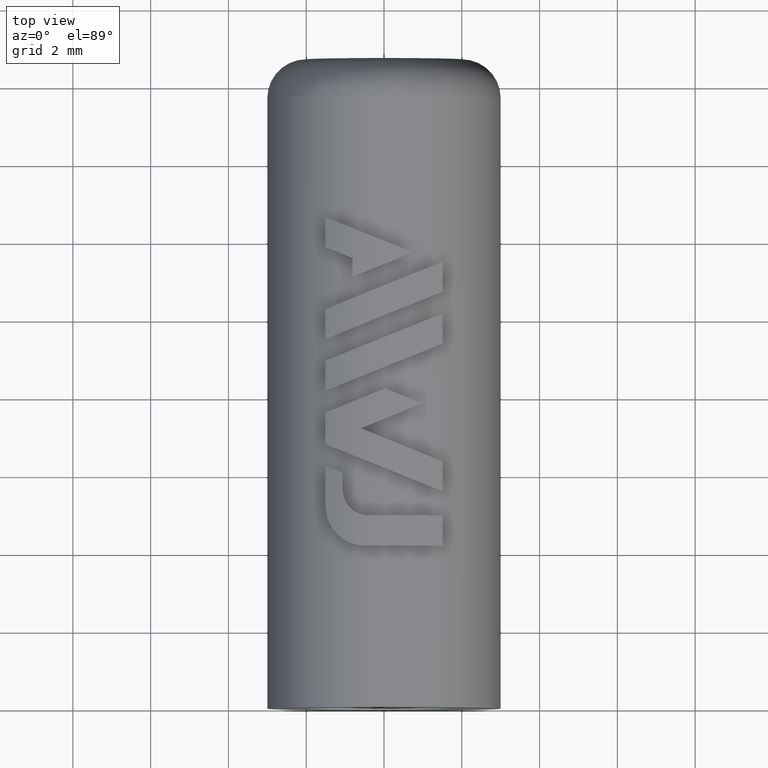
[diagram: clean part render]
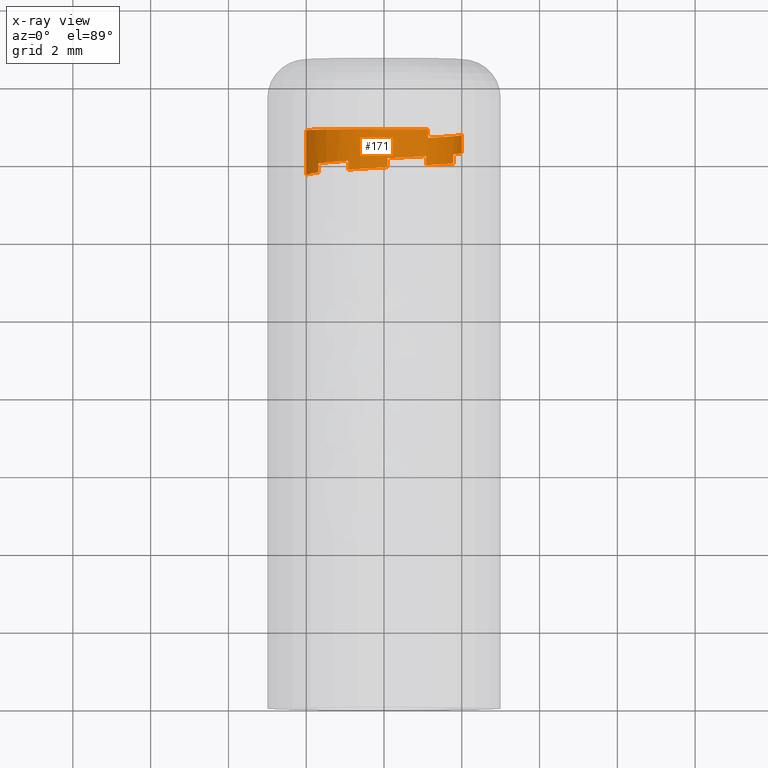
[diagram: x-ray — body ghosted, one internal face saturated and labeled with its STEP entity id]
A machine part, top view, then the same camera in x-ray: the body is ghosted and one INTERNAL B-rep face — a face not visible from any outside direction — is saturated and labeled: STEP entity #171.
In plain terms, the highlighted cylindrical surface (partial cylindrical patch) has radius 2 mm, axis along (-0, 1, 0).
Its self-contained STEP definition (entity closure, byte-faithful):
#171=ADVANCED_FACE('',(#618,#619,#620,#621,#622,#623,#624),#625,.F.);
#618=FACE_OUTER_BOUND('',#1424,.T.);
#619=FACE_BOUND('',#1425,.T.);
#620=FACE_BOUND('',#1426,.T.);
#621=FACE_BOUND('',#1427,.T.);
#622=FACE_BOUND('',#1428,.T.);
#623=FACE_BOUND('',#1429,.T.);
#624=FACE_BOUND('',#1430,.T.);
#625=CYLINDRICAL_SURFACE('',#1431,2.0);
#1424=EDGE_LOOP('',(#5887,#5888,#5889,#5890,#5891,#5892,#5893,#5894,#5895,#5896,#5897,#5898,#5899,#5900,#5901,#5902,#5903,#5904,#5905,#5906,#5907,#5908,#5909));
#1425=VERTEX_LOOP('',#5910);
#1426=VERTEX_LOOP('',#5911);
#1427=VERTEX_LOOP('',#5912);
#1428=VERTEX_LOOP('',#5913);
#1429=VERTEX_LOOP('',#5914);
#1430=VERTEX_LOOP('',#5915);
#1431=AXIS2_PLACEMENT_3D('',#5916,#5917,#5918);
#5887=ORIENTED_EDGE('',*,*,#9274,.T.);
#5888=ORIENTED_EDGE('',*,*,#9275,.T.);
#5889=ORIENTED_EDGE('',*,*,#9276,.T.);
#5890=ORIENTED_EDGE('',*,*,#9277,.F.);
#5891=ORIENTED_EDGE('',*,*,#9278,.F.);
#5892=ORIENTED_EDGE('',*,*,#9279,.T.);
#5893=ORIENTED_EDGE('',*,*,#9280,.T.);
#5894=ORIENTED_EDGE('',*,*,#9281,.F.);
#5895=ORIENTED_EDGE('',*,*,#9282,.F.);
#5896=ORIENTED_EDGE('',*,*,#9283,.T.);
#5897=ORIENTED_EDGE('',*,*,#9284,.T.);
#5898=ORIENTED_EDGE('',*,*,#9285,.F.);
#5899=ORIENTED_EDGE('',*,*,#9286,.F.);
#5900=ORIENTED_EDGE('',*,*,#9287,.T.);
#5901=ORIENTED_EDGE('',*,*,#9288,.T.);
#5902=ORIENTED_EDGE('',*,*,#9289,.T.);
#5903=ORIENTED_EDGE('',*,*,#9290,.F.);
#5904=ORIENTED_EDGE('',*,*,#9291,.T.);
#5905=ORIENTED_EDGE('',*,*,#9292,.T.);
#5906=ORIENTED_EDGE('',*,*,#9264,.F.);
#5907=ORIENTED_EDGE('',*,*,#9293,.T.);
#5908=ORIENTED_EDGE('',*,*,#9294,.T.);
#5909=ORIENTED_EDGE('',*,*,#9295,.T.);
#5910=VERTEX_POINT('',#9296);
#5911=VERTEX_POINT('',#9297);
#5912=VERTEX_POINT('',#9298);
#5913=VERTEX_POINT('',#9299);
#5914=VERTEX_POINT('',#9300);
#5915=VERTEX_POINT('',#9301);
#5916=CARTESIAN_POINT('',(0.0,0.0,0.0));
#5917=DIRECTION('',(-0.0,1.0,0.0));
#5918=DIRECTION('',(1.0,0.0,-6.12323399573677E-17));
#9264=EDGE_CURVE('',#10966,#10968,#10969,.T.);
#9274=EDGE_CURVE('',#10984,#10985,#10986,.T.);
#9275=EDGE_CURVE('',#10985,#10987,#10988,.T.);
#9276=EDGE_CURVE('',#10987,#10989,#10990,.T.);
#9277=EDGE_CURVE('',#10991,#10989,#10992,.T.);
#9278=EDGE_CURVE('',#10993,#10991,#10994,.T.);
#9279=EDGE_CURVE('',#10993,#10995,#10996,.T.);
#9280=EDGE_CURVE('',#10995,#10997,#10998,.T.);
#9281=EDGE_CURVE('',#10999,#10997,#11000,.T.);
#9282=EDGE_CURVE('',#11001,#10999,#11002,.T.);
#9283=EDGE_CURVE('',#11001,#11003,#11004,.T.);
#9284=EDGE_CURVE('',#11003,#11005,#11006,.T.);
#9285=EDGE_CURVE('',#11007,#11005,#11008,.T.);
#9286=EDGE_CURVE('',#11009,#11007,#11010,.T.);
#9287=EDGE_CURVE('',#11009,#11011,#11012,.T.);
#9288=EDGE_CURVE('',#11011,#11013,#11014,.T.);
#9289=EDGE_CURVE('',#11013,#11015,#11016,.T.);
#9290=EDGE_CURVE('',#11017,#11015,#11018,.T.);
#9291=EDGE_CURVE('',#11017,#11019,#11020,.T.);
#9292=EDGE_CURVE('',#11019,#10968,#11021,.T.);
#9293=EDGE_CURVE('',#10966,#11022,#11023,.T.);
#9294=EDGE_CURVE('',#11022,#11024,#11025,.T.);
#9295=EDGE_CURVE('',#11024,#10984,#11026,.T.);
#9296=CARTESIAN_POINT('',(0.149981549789649,14.5928922225598,1.9943684551062));
#9297=CARTESIAN_POINT('',(-0.871126579964209,14.5343220146571,1.80031621713516));
#9298=CARTESIAN_POINT('',(-1.65720293874474,14.4757277359546,1.11967781964982));
#9299=CARTESIAN_POINT('',(-1.65721686231309,14.7066667732152,1.11965721150052));
#9300=CARTESIAN_POINT('',(-0.871083132396938,14.7652651203278,1.80033723965361));
#9301=CARTESIAN_POINT('',(0.149847138262735,14.8238251505989,1.99437855863787));
#10966=VERTEX_POINT('',#13880);
#10968=VERTEX_POINT('',#13888);
#10969=CIRCLE('',#13889,2.0);
#10984=VERTEX_POINT('',#13928);
#10985=VERTEX_POINT('',#13929);
#10986=LINE('',#13930,#13931);
#10987=VERTEX_POINT('',#13932);
#10988=B_SPLINE_CURVE_WITH_KNOTS('',3,(#13933,#13934,#13935,#13936),.UNSPECIFIED.,.F.,.F.,(4,4),(0.0,1.0),.UNSPECIFIED.);
#10989=VERTEX_POINT('',#13937);
#10990=LINE('',#13938,#13939);
#10991=VERTEX_POINT('',#13940);
#10992=B_SPLINE_CURVE_WITH_KNOTS('',3,(#13941,#13942,#13943,#13944),.UNSPECIFIED.,.F.,.F.,(4,4),(0.0,1.0),.UNSPECIFIED.);
#10993=VERTEX_POINT('',#13945);
#10994=LINE('',#13946,#13947);
#10995=VERTEX_POINT('',#13948);
#10996=B_SPLINE_CURVE_WITH_KNOTS('',3,(#13949,#13950,#13951,#13952),.UNSPECIFIED.,.F.,.F.,(4,4),(0.0,1.0),.UNSPECIFIED.);
#10997=VERTEX_POINT('',#13953);
#10998=LINE('',#13954,#13955);
#10999=VERTEX_POINT('',#13956);
#11000=B_SPLINE_CURVE_WITH_KNOTS('',3,(#13957,#13958,#13959,#13960),.UNSPECIFIED.,.F.,.F.,(4,4),(0.0,1.0),.UNSPECIFIED.);
#11001=VERTEX_POINT('',#13961);
#11002=LINE('',#13962,#13963);
#11003=VERTEX_POINT('',#13964);
#11004=B_SPLINE_CURVE_WITH_KNOTS('',3,(#13965,#13966,#13967,#13968),.UNSPECIFIED.,.F.,.F.,(4,4),(0.0,1.0),.UNSPECIFIED.);
#11005=VERTEX_POINT('',#13969);
#11006=LINE('',#13970,#13971);
#11007=VERTEX_POINT('',#13972);
#11008=B_SPLINE_CURVE_WITH_KNOTS('',3,(#13973,#13974,#13975,#13976),.UNSPECIFIED.,.F.,.F.,(4,4),(0.0,1.0),.UNSPECIFIED.);
#11009=VERTEX_POINT('',#13977);
#11010=LINE('',#13978,#13979);
#11011=VERTEX_POINT('',#13980);
#11012=B_SPLINE_CURVE_WITH_KNOTS('',3,(#13981,#13982,#13983,#13984),.UNSPECIFIED.,.F.,.F.,(4,4),(0.0,1.0),.UNSPECIFIED.);
#11013=VERTEX_POINT('',#13985);
#11014=LINE('',#13986,#13987);
#11015=VERTEX_POINT('',#13988);
#11016=B_SPLINE_CURVE_WITH_KNOTS('',3,(#13989,#13990,#13991,#13992),.UNSPECIFIED.,.F.,.F.,(4,4),(0.0,1.0),.UNSPECIFIED.);
#11017=VERTEX_POINT('',#13993);
#11018=LINE('',#13994,#13995);
#11019=VERTEX_POINT('',#13996);
#11020=B_SPLINE_CURVE_WITH_KNOTS('',3,(#13997,#13998,#13999,#14000),.UNSPECIFIED.,.F.,.F.,(4,4),(0.0,1.0),.UNSPECIFIED.);
#11021=LINE('',#14001,#14002);
#11022=VERTEX_POINT('',#14003);
#11023=LINE('',#14004,#14005);
#11024=VERTEX_POINT('',#14006);
#11025=B_SPLINE_CURVE_WITH_KNOTS('',3,(#14007,#14008,#14009,#14010),.UNSPECIFIED.,.F.,.F.,(4,4),(0.0,1.0),.UNSPECIFIED.);
#11026=B_SPLINE_CURVE_WITH_KNOTS('',3,(#14011,#14012,#14013,#14014),.UNSPECIFIED.,.F.,.F.,(4,4),(0.0,1.0),.UNSPECIFIED.);
#13880=CARTESIAN_POINT('',(1.1347802038434,14.8730729566161,1.64689826308887));
#13888=CARTESIAN_POINT('',(-2.0,14.8730729566161,-1.22463677939047E-16));
#13889=AXIS2_PLACEMENT_3D('',#20375,#20376,#20377);
#13928=CARTESIAN_POINT('',(1.99988620043527,14.7595288732488,1.41265080812417E-16));
#13929=CARTESIAN_POINT('',(1.99994713776969,14.2904697136759,1.34089608497209E-16));
#13930=CARTESIAN_POINT('',(2.0,0.0,1.22465681890423E-16));
#13931=VECTOR('',#20399,1.0);
#13932=CARTESIAN_POINT('',(1.78120632191853,14.237871312363,0.909562553521958));
#13933=CARTESIAN_POINT('',(1.99709997775846,14.2964704882263,-0.107664659183759));
#13934=CARTESIAN_POINT('',(2.01597664202746,14.2769374296052,0.242483533153216));
#13935=CARTESIAN_POINT('',(1.94067840016947,14.2574043709841,0.597266634064246));
#13936=CARTESIAN_POINT('',(1.78120632191642,14.2378713123631,0.90956255351954));
#13937=CARTESIAN_POINT('',(1.78120888590229,14.0069312047303,0.909557532426965));
#13938=CARTESIAN_POINT('',(1.78120632191643,0.0,0.909562553519511));
#13939=VECTOR('',#20400,1000.0);
#13940=CARTESIAN_POINT('',(1.08378553099947,13.9483320295625,1.68089527419411));
#13941=CARTESIAN_POINT('',(1.08378553099811,13.9483320295625,1.68089527419145));
#13942=CARTESIAN_POINT('',(1.37849407906195,13.9678650879518,1.49087697551624));
#13943=CARTESIAN_POINT('',(1.62173768987826,13.987398146341,1.22185389771512));
#13944=CARTESIAN_POINT('',(1.7812088858995,14.0069312047303,0.909557532425876));
#13945=CARTESIAN_POINT('',(1.08378079221836,14.179272137165,1.68089832959357));
#13946=CARTESIAN_POINT('',(1.08378079221683,0.0,1.68089832959102));
#13947=VECTOR('',#20401,1000.0);
#13948=CARTESIAN_POINT('',(0.0933656214995419,14.1206729617851,1.99781952656738));
#13949=CARTESIAN_POINT('',(1.0837807922168,14.179272137165,1.68089832959103));
#13950=CARTESIAN_POINT('',(0.789071707388391,14.159739078705,1.87091579811129));
#13951=CARTESIAN_POINT('',(0.443639968234387,14.140206020245,1.98144988874517));
#13952=CARTESIAN_POINT('',(0.0933656214989831,14.1206729617851,1.99781952656443));
#13953=CARTESIAN_POINT('',(0.0933712536677111,13.8897328541781,1.99781926334701));
#13954=CARTESIAN_POINT('',(0.0933656214989853,0.0,1.99781952656442));
#13955=VECTOR('',#20402,1000.0);
#13956=CARTESIAN_POINT('',(-0.92228503703218,13.8311336788351,1.77465216605352));
#13957=CARTESIAN_POINT('',(-0.922285037030463,13.8311336788351,1.77465216605106));
#13958=CARTESIAN_POINT('',(-0.611138249500803,13.8506667372828,1.93635485458256));
#13959=CARTESIAN_POINT('',(-0.256903046697387,13.8701997957304,2.01418988863164));
#13960=CARTESIAN_POINT('',(0.093371253667393,13.8897328541781,1.99781926334405));
#13961=CARTESIAN_POINT('',(-0.922290040045243,14.0620737864425,1.77464956598345));
#13962=CARTESIAN_POINT('',(-0.922290040043687,0.0,1.7746495659809));
#13963=VECTOR('',#20403,1000.0);
#13964=CARTESIAN_POINT('',(-1.68861352304041,14.0034746110954,1.07172028525028));
#13965=CARTESIAN_POINT('',(-0.922290040043717,14.0620737864426,1.77464956598089));
#13966=CARTESIAN_POINT('',(-1.23343637172973,14.0425407279935,1.61294600026788));
#13967=CARTESIAN_POINT('',(-1.50071060308091,14.0230076695444,1.36778206183825));
#13968=CARTESIAN_POINT('',(-1.68861352303808,14.0034746110954,1.07172028524841));
#13969=CARTESIAN_POINT('',(-1.68861050168331,13.7725345034886,1.07172504571683));
#13970=CARTESIAN_POINT('',(-1.68861352303807,0.0,1.07172028524841));
#13971=VECTOR('',#20404,1000.0);
#13972=CARTESIAN_POINT('',(-1.9984364738151,13.7139353281408,0.0790674404378026));
#13973=CARTESIAN_POINT('',(-1.9984364738121,13.7139353281408,0.0790674404381584));
#13974=CARTESIAN_POINT('',(-1.98457371210411,13.73346838659,0.429449955307711));
#13975=CARTESIAN_POINT('',(-1.87651425628459,13.7530014450393,0.775663798851775));
#13976=CARTESIAN_POINT('',(-1.68861050168085,13.7725345034886,1.07172504571516));
#13977=CARTESIAN_POINT('',(-1.99843669671066,13.9448754357479,0.0790618065319977));
#13978=CARTESIAN_POINT('',(-1.99843669670767,0.0,0.0790618065321193));
#13979=VECTOR('',#20405,1000.0);
#13980=CARTESIAN_POINT('',(-1.99996981621975,13.9404699071239,-1.3582402432478E-16));
#13981=CARTESIAN_POINT('',(-1.99843669670767,13.9448754357479,0.0790618065321504));
#13982=CARTESIAN_POINT('',(-2.01229847063223,13.9253423772988,-0.271320747413554));
#13983=CARTESIAN_POINT('',(-1.93192863554377,13.9058093188498,-0.624989463952655));
#13984=CARTESIAN_POINT('',(-1.76800186712717,13.8862762604007,-0.934970265749054));
#13985=CARTESIAN_POINT('',(-1.99992022507903,14.4095290907536,-1.55511437614706E-16));
#13986=CARTESIAN_POINT('',(-2.0,0.0,-1.22463677939047E-16));
#13987=VECTOR('',#20406,1.0);
#13988=CARTESIAN_POINT('',(-1.99535516251898,14.4171240847246,0.136226926257579));
#13989=CARTESIAN_POINT('',(-1.79405137984146,14.3585266624534,-0.883956812570021));
#13990=CARTESIAN_POINT('',(-1.94902941009682,14.3780591365438,-0.569418200421798));
#13991=CARTESIAN_POINT('',(-2.01923888669245,14.3975916106342,-0.213604884923028));
#13992=CARTESIAN_POINT('',(-1.99535516251185,14.4171240847246,0.136226926256611));
#13993=CARTESIAN_POINT('',(-1.99535514194537,14.6480645230616,0.136227227603145));
#13994=CARTESIAN_POINT('',(-1.99535514193839,0.0,0.13622722760165));
#13995=VECTOR('',#20407,1000.0);
#13996=CARTESIAN_POINT('',(-1.99992022349246,14.6404695122701,-1.20816968046595E-16));
#13997=CARTESIAN_POINT('',(-1.99535514193839,14.6480645230616,0.13622722760168));
#13998=CARTESIAN_POINT('',(-2.01923908945934,14.6285319095918,-0.213607077439564));
#13999=CARTESIAN_POINT('',(-1.94902846436263,14.6089992961219,-0.569422979020993));
#14000=CARTESIAN_POINT('',(-1.79404819413769,14.5894666826521,-0.88396327814637));
#14001=CARTESIAN_POINT('',(-2.0,0.0,-1.22463677939047E-16));
#14002=VECTOR('',#20408,1.0);
#14003=CARTESIAN_POINT('',(1.13478020133655,14.6517463441498,1.64689826481619));
#14004=CARTESIAN_POINT('',(1.1347802038434,0.0,1.64689826308887));
#14005=VECTOR('',#20409,1000.0);
#14006=CARTESIAN_POINT('',(1.7995432022854,14.7092235874792,0.872722328755482));
#14007=CARTESIAN_POINT('',(1.1347802038434,14.6517462895175,1.64689826308887));
#14008=CARTESIAN_POINT('',(1.41771991854323,14.6708861660629,1.4519412373159));
#14009=CARTESIAN_POINT('',(1.64900730661025,14.6900260426082,1.18272483139514));
#14010=CARTESIAN_POINT('',(1.799099468941,14.7091659191536,0.873636709883587));
#14011=CARTESIAN_POINT('',(1.79954322691359,14.7092225748486,0.872722277972455));
#14012=CARTESIAN_POINT('',(1.95490075600106,14.7290552103213,0.552376852771549));
#14013=CARTESIAN_POINT('',(2.02253562744709,14.7488878457939,0.190017864945679));
#14014=CARTESIAN_POINT('',(1.99319858531967,14.7687204812666,-0.164801090650731));
#20375=CARTESIAN_POINT('',(0.0,14.8730729566161,0.0));
#20376=DIRECTION('',(0.0,-1.0,0.0));
#20377=DIRECTION('',(1.0,0.0,-6.12323399573677E-17));
#20399=DIRECTION('',(0.0,-1.0,0.0));
#20400=DIRECTION('',(0.0,-1.0,0.0));
#20401=DIRECTION('',(0.0,-1.0,0.0));
#20402=DIRECTION('',(0.0,-1.0,0.0));
#20403=DIRECTION('',(0.0,-1.0,0.0));
#20404=DIRECTION('',(0.0,-1.0,0.0));
#20405=DIRECTION('',(0.0,-1.0,0.0));
#20406=DIRECTION('',(-0.0,1.0,-0.0));
#20407=DIRECTION('',(0.0,-1.0,0.0));
#20408=DIRECTION('',(-0.0,1.0,-0.0));
#20409=DIRECTION('',(0.0,-1.0,0.0));